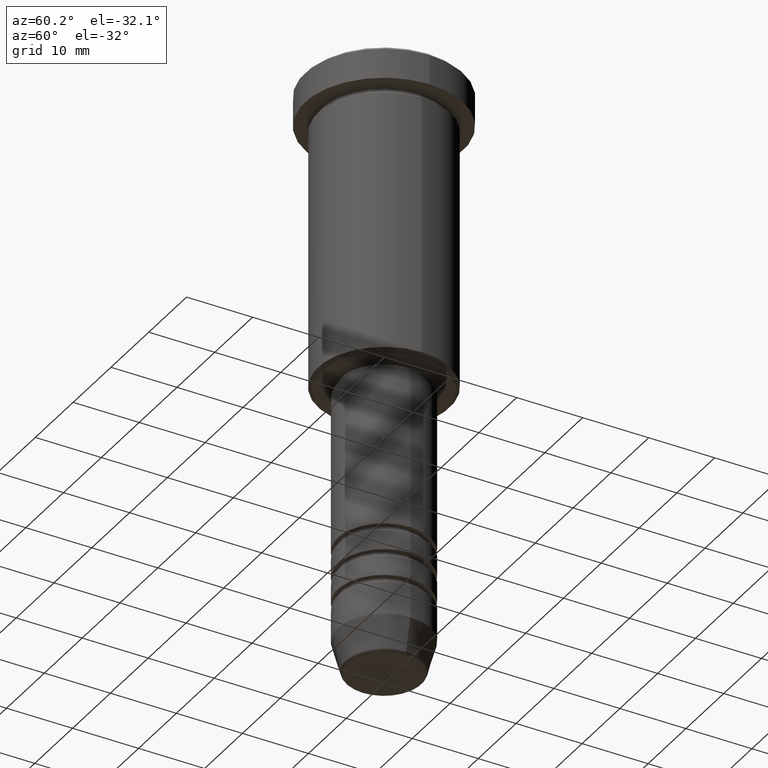
[diagram: clean part render]
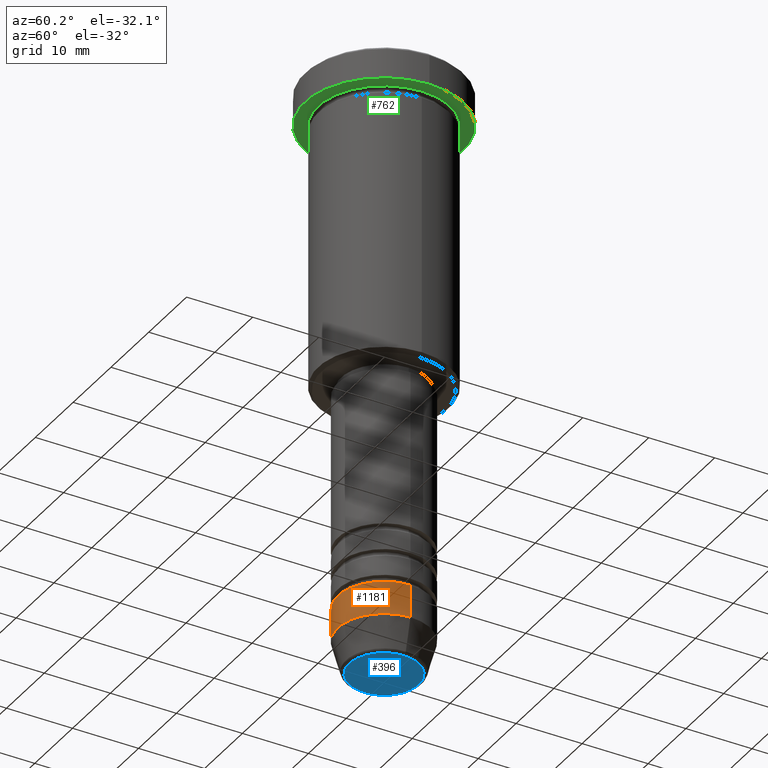
[diagram: same view with three faces highlighted in distinct colors, each labeled with its STEP entity id]
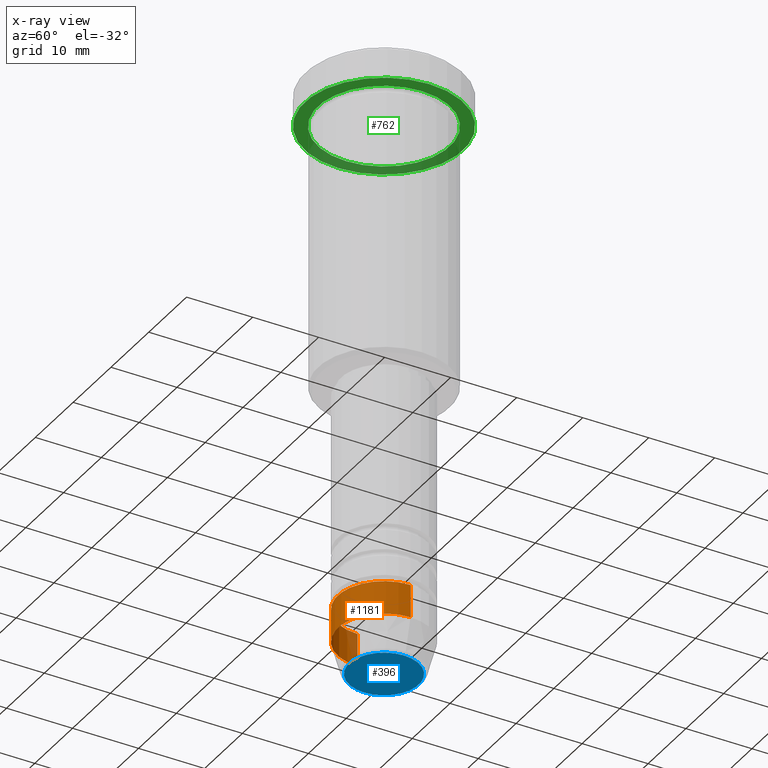
[diagram: x-ray of the same camera — body ghosted, the three highlighted faces saturated]
A machine part, auxiliary view with three faces highlighted in distinct colors.
The next image is the same camera in x-ray (body ghosted, the three faces saturated) — at least one of them is partly hidden behind the body in this view.
Their STEP definitions:

[orange] entity #1181 — the highlighted cylindrical surface (partial cylindrical patch) has radius 7 mm, axis along (-0, -0, 1).
#22 = CARTESIAN_POINT ( 'NONE',  ( -7.000000000000000000, 8.572527594031473190E-16, -79.99999999999998579 ) ) ;
#121 = CARTESIAN_POINT ( 'NONE',  ( 0.000000000000000000, 0.000000000000000000, 0.000000000000000000 ) ) ;
#135 = CARTESIAN_POINT ( 'NONE',  ( -7.000000000000000888, 8.572527594031474176E-16, -84.99999999999998579 ) ) ;
#147 = EDGE_CURVE ( 'NONE', #394, #990, #241, .T. ) ;
#162 = LINE ( 'NONE', #623, #520 ) ;
#177 = DIRECTION ( 'NONE',  ( 1.000000000000000000, 0.000000000000000000, 0.000000000000000000 ) ) ;
#197 = AXIS2_PLACEMENT_3D ( 'NONE', #121, #745, #591 ) ;
#241 = CIRCLE ( 'NONE', #387, 7.000000000000000888 ) ;
#313 = FACE_OUTER_BOUND ( 'NONE', #661, .T. ) ;
#345 = DIRECTION ( 'NONE',  ( 1.000000000000000000, 0.000000000000000000, 0.000000000000000000 ) ) ;
#355 = DIRECTION ( 'NONE',  ( -0.000000000000000000, -0.000000000000000000, 1.000000000000000000 ) ) ;
#387 = AXIS2_PLACEMENT_3D ( 'NONE', #448, #1179, #177 ) ;
#394 = VERTEX_POINT ( 'NONE', #135 ) ;
#437 = LINE ( 'NONE', #1183, #867 ) ;
#448 = CARTESIAN_POINT ( 'NONE',  ( 0.000000000000000000, 0.000000000000000000, -84.99999999999998579 ) ) ;
#471 = CARTESIAN_POINT ( 'NONE',  ( 7.000000000000000000, 0.000000000000000000, -79.99999999999998579 ) ) ;
#520 = VECTOR ( 'NONE', #708, 1000.000000000000000 ) ;
#527 = EDGE_CURVE ( 'NONE', #990, #751, #437, .T. ) ;
#532 = EDGE_CURVE ( 'NONE', #394, #1127, #162, .T. ) ;
#543 = ORIENTED_EDGE ( 'NONE', *, *, #147, .T. ) ;
#570 = EDGE_CURVE ( 'NONE', #1127, #751, #1063, .T. ) ;
#591 = DIRECTION ( 'NONE',  ( 1.000000000000000000, 0.000000000000000000, 0.000000000000000000 ) ) ;
#623 = CARTESIAN_POINT ( 'NONE',  ( -7.000000000000000888, 8.572527594031474176E-16, 0.000000000000000000 ) ) ;
#661 = EDGE_LOOP ( 'NONE', ( #679, #543, #965, #944 ) ) ;
#679 = ORIENTED_EDGE ( 'NONE', *, *, #532, .F. ) ;
#708 = DIRECTION ( 'NONE',  ( -0.000000000000000000, -0.000000000000000000, 1.000000000000000000 ) ) ;
#745 = DIRECTION ( 'NONE',  ( -0.000000000000000000, -0.000000000000000000, 1.000000000000000000 ) ) ;
#751 = VERTEX_POINT ( 'NONE', #471 ) ;
#799 = DIRECTION ( 'NONE',  ( -0.000000000000000000, -0.000000000000000000, 1.000000000000000000 ) ) ;
#867 = VECTOR ( 'NONE', #355, 1000.000000000000000 ) ;
#899 = CARTESIAN_POINT ( 'NONE',  ( 0.000000000000000000, 0.000000000000000000, -79.99999999999998579 ) ) ;
#927 = AXIS2_PLACEMENT_3D ( 'NONE', #899, #799, #345 ) ;
#944 = ORIENTED_EDGE ( 'NONE', *, *, #570, .F. ) ;
#965 = ORIENTED_EDGE ( 'NONE', *, *, #527, .T. ) ;
#990 = VERTEX_POINT ( 'NONE', #1090 ) ;
#1063 = CIRCLE ( 'NONE', #927, 7.000000000000000000 ) ;
#1090 = CARTESIAN_POINT ( 'NONE',  ( 7.000000000000000888, 0.000000000000000000, -84.99999999999998579 ) ) ;
#1119 = CYLINDRICAL_SURFACE ( 'NONE', #197, 7.000000000000000888 ) ;
#1127 = VERTEX_POINT ( 'NONE', #22 ) ;
#1179 = DIRECTION ( 'NONE',  ( -0.000000000000000000, -0.000000000000000000, 1.000000000000000000 ) ) ;
#1181 = ADVANCED_FACE ( 'NONE', ( #313 ), #1119, .T. ) ;
#1183 = CARTESIAN_POINT ( 'NONE',  ( 7.000000000000000888, 0.000000000000000000, 0.000000000000000000 ) ) ;

[blue] entity #396 — the highlighted planar face has unit normal (0, -0, 1).
#3 = ORIENTED_EDGE ( 'NONE', *, *, #159, .T. ) ;
#31 = CARTESIAN_POINT ( 'NONE',  ( 0.000000000000000000, 0.000000000000000000, -90.00000000000000000 ) ) ;
#40 = PLANE ( 'NONE',  #294 ) ;
#115 = DIRECTION ( 'NONE',  ( 0.000000000000000000, 0.000000000000000000, -1.000000000000000000 ) ) ;
#158 = AXIS2_PLACEMENT_3D ( 'NONE', #31, #115, #477 ) ;
#159 = EDGE_CURVE ( 'NONE', #445, #424, #790, .T. ) ;
#166 = AXIS2_PLACEMENT_3D ( 'NONE', #1174, #189, #548 ) ;
#189 = DIRECTION ( 'NONE',  ( 0.000000000000000000, 0.000000000000000000, -1.000000000000000000 ) ) ;
#230 = FACE_OUTER_BOUND ( 'NONE', #323, .T. ) ;
#294 = AXIS2_PLACEMENT_3D ( 'NONE', #1145, #410, #1134 ) ;
#323 = EDGE_LOOP ( 'NONE', ( #3, #1032 ) ) ;
#396 = ADVANCED_FACE ( 'NONE', ( #230 ), #40, .F. ) ;
#410 = DIRECTION ( 'NONE',  ( 0.000000000000000000, -0.000000000000000000, 1.000000000000000000 ) ) ;
#419 = CIRCLE ( 'NONE', #158, 5.276590543854903004 ) ;
#424 = VERTEX_POINT ( 'NONE', #1050 ) ;
#445 = VERTEX_POINT ( 'NONE', #503 ) ;
#477 = DIRECTION ( 'NONE',  ( 1.000000000000000000, 0.000000000000000000, 0.000000000000000000 ) ) ;
#503 = CARTESIAN_POINT ( 'NONE',  ( 5.276590543854903004, 0.000000000000000000, -90.00000000000000000 ) ) ;
#548 = DIRECTION ( 'NONE',  ( 1.000000000000000000, 0.000000000000000000, 0.000000000000000000 ) ) ;
#790 = CIRCLE ( 'NONE', #166, 5.276590543854903004 ) ;
#1032 = ORIENTED_EDGE ( 'NONE', *, *, #1097, .T. ) ;
#1050 = CARTESIAN_POINT ( 'NONE',  ( -5.276590543854903004, 6.757689212787765916E-16, -90.00000000000000000 ) ) ;
#1097 = EDGE_CURVE ( 'NONE', #424, #445, #419, .T. ) ;
#1134 = DIRECTION ( 'NONE',  ( 1.000000000000000000, 0.000000000000000000, 0.000000000000000000 ) ) ;
#1145 = CARTESIAN_POINT ( 'NONE',  ( 0.000000000000000000, 0.000000000000000000, -90.00000000000000000 ) ) ;
#1174 = CARTESIAN_POINT ( 'NONE',  ( 0.000000000000000000, 0.000000000000000000, -90.00000000000000000 ) ) ;

[green] entity #762 — the highlighted planar face has unit normal (0, 0, -1).
#17 = DIRECTION ( 'NONE',  ( -1.000000000000000000, 0.000000000000000000, 0.000000000000000000 ) ) ;
#26 = CIRCLE ( 'NONE', #640, 12.00000000000000000 ) ;
#49 = EDGE_CURVE ( 'NONE', #550, #399, #1146, .T. ) ;
#50 = CARTESIAN_POINT ( 'NONE',  ( 0.000000000000000000, 0.000000000000000000, -5.000000000000000000 ) ) ;
#117 = CARTESIAN_POINT ( 'NONE',  ( 0.000000000000000000, 0.000000000000000000, -5.000000000000000000 ) ) ;
#184 = ORIENTED_EDGE ( 'NONE', *, *, #1076, .T. ) ;
#211 = DIRECTION ( 'NONE',  ( -1.000000000000000000, 0.000000000000000000, -0.000000000000000000 ) ) ;
#215 = EDGE_CURVE ( 'NONE', #297, #966, #26, .T. ) ;
#216 = PLANE ( 'NONE',  #371 ) ;
#220 = CARTESIAN_POINT ( 'NONE',  ( 0.000000000000000000, 0.000000000000000000, -5.000000000000000000 ) ) ;
#295 = DIRECTION ( 'NONE',  ( -0.000000000000000000, -0.000000000000000000, 1.000000000000000000 ) ) ;
#297 = VERTEX_POINT ( 'NONE', #383 ) ;
#371 = AXIS2_PLACEMENT_3D ( 'NONE', #835, #918, #211 ) ;
#383 = CARTESIAN_POINT ( 'NONE',  ( -12.00000000000000000, 1.469576158976823947E-15, -5.000000000000000000 ) ) ;
#393 = DIRECTION ( 'NONE',  ( -0.000000000000000000, -0.000000000000000000, 1.000000000000000000 ) ) ;
#399 = VERTEX_POINT ( 'NONE', #773 ) ;
#415 = DIRECTION ( 'NONE',  ( -0.000000000000000000, -0.000000000000000000, 1.000000000000000000 ) ) ;
#550 = VERTEX_POINT ( 'NONE', #702 ) ;
#640 = AXIS2_PLACEMENT_3D ( 'NONE', #1029, #674, #1126 ) ;
#643 = CIRCLE ( 'NONE', #1080, 12.00000000000000000 ) ;
#648 = EDGE_CURVE ( 'NONE', #966, #297, #643, .T. ) ;
#674 = DIRECTION ( 'NONE',  ( -0.000000000000000000, -0.000000000000000000, 1.000000000000000000 ) ) ;
#682 = EDGE_LOOP ( 'NONE', ( #916, #184 ) ) ;
#702 = CARTESIAN_POINT ( 'NONE',  ( -10.00000000000000000, 0.000000000000000000, -4.999999999999999112 ) ) ;
#731 = FACE_OUTER_BOUND ( 'NONE', #975, .T. ) ;
#733 = DIRECTION ( 'NONE',  ( -1.000000000000000000, 0.000000000000000000, 0.000000000000000000 ) ) ;
#762 = ADVANCED_FACE ( 'NONE', ( #923, #731 ), #216, .T. ) ;
#773 = CARTESIAN_POINT ( 'NONE',  ( 10.00000000000000000, 1.224646799147353256E-15, -4.999999999999999112 ) ) ;
#784 = CIRCLE ( 'NONE', #1054, 10.00000000000000000 ) ;
#835 = CARTESIAN_POINT ( 'NONE',  ( 0.000000000000000000, 12.00000000000000000, -5.000000000000000000 ) ) ;
#904 = CARTESIAN_POINT ( 'NONE',  ( 12.00000000000000000, 0.000000000000000000, -5.000000000000000000 ) ) ;
#916 = ORIENTED_EDGE ( 'NONE', *, *, #49, .T. ) ;
#918 = DIRECTION ( 'NONE',  ( 0.000000000000000000, 0.000000000000000000, -1.000000000000000000 ) ) ;
#923 = FACE_BOUND ( 'NONE', #682, .T. ) ;
#933 = DIRECTION ( 'NONE',  ( 1.000000000000000000, 0.000000000000000000, 0.000000000000000000 ) ) ;
#961 = AXIS2_PLACEMENT_3D ( 'NONE', #50, #415, #733 ) ;
#966 = VERTEX_POINT ( 'NONE', #904 ) ;
#975 = EDGE_LOOP ( 'NONE', ( #1155, #1128 ) ) ;
#1029 = CARTESIAN_POINT ( 'NONE',  ( 0.000000000000000000, 0.000000000000000000, -5.000000000000000000 ) ) ;
#1054 = AXIS2_PLACEMENT_3D ( 'NONE', #220, #393, #17 ) ;
#1076 = EDGE_CURVE ( 'NONE', #399, #550, #784, .T. ) ;
#1080 = AXIS2_PLACEMENT_3D ( 'NONE', #117, #295, #933 ) ;
#1126 = DIRECTION ( 'NONE',  ( 1.000000000000000000, 0.000000000000000000, 0.000000000000000000 ) ) ;
#1128 = ORIENTED_EDGE ( 'NONE', *, *, #215, .F. ) ;
#1146 = CIRCLE ( 'NONE', #961, 10.00000000000000000 ) ;
#1155 = ORIENTED_EDGE ( 'NONE', *, *, #648, .F. ) ;